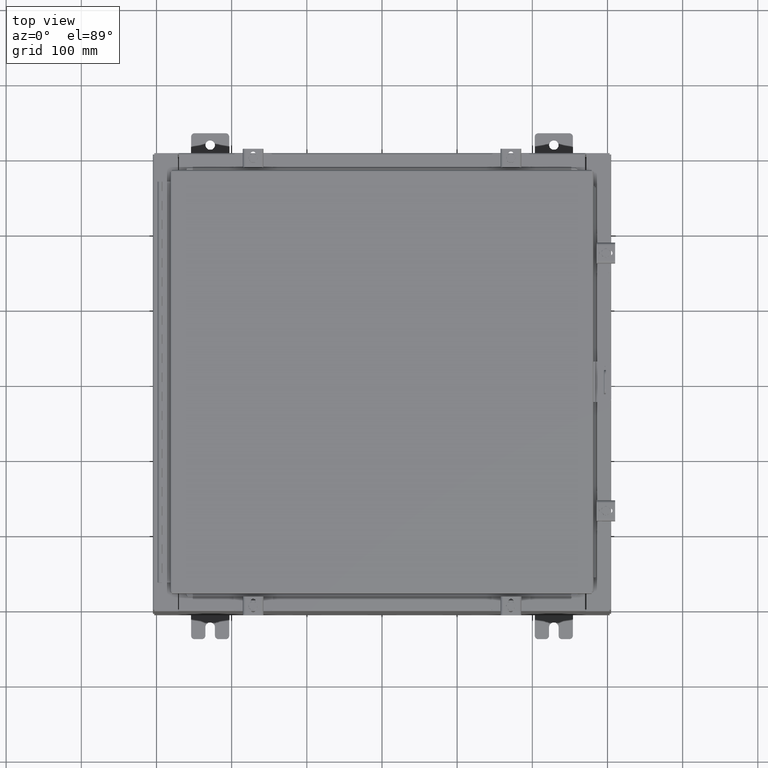
[diagram: clean part render]
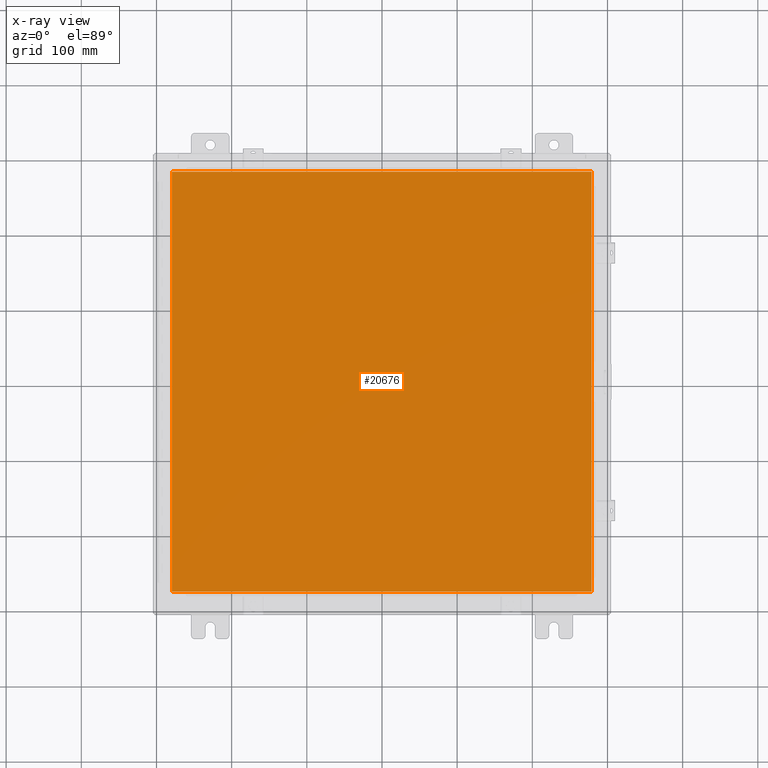
[diagram: x-ray — body ghosted, one internal face saturated and labeled with its STEP entity id]
A machine part, top view, then the same camera in x-ray: the body is ghosted and one INTERNAL B-rep face — a face not visible from any outside direction — is saturated and labeled: STEP entity #20676.
In plain terms, the highlighted planar face has unit normal (0, 0, -1).
Its self-contained STEP definition (entity closure, byte-faithful):
#128 = VECTOR ( 'NONE', #31455, 39.37007874015748100 ) ;
#699 = VERTEX_POINT ( 'NONE', #14161 ) ;
#1495 = CARTESIAN_POINT ( 'NONE',  ( 10.99029999999999600, -11.00630000000000100, -0.07470000000000019700 ) ) ;
#3142 = ORIENTED_EDGE ( 'NONE', *, *, #20044, .F. ) ;
#3423 = LINE ( 'NONE', #20355, #10068 ) ;
#3605 = DIRECTION ( 'NONE',  ( -1.000000000000000000, -0.0000000000000000000, -0.0000000000000000000 ) ) ;
#3688 = CARTESIAN_POINT ( 'NONE',  ( 10.99029999999999800, 11.00629999999999600, -0.07470000000000019700 ) ) ;
#4999 = EDGE_CURVE ( 'NONE', #18531, #18370, #3423, .T. ) ;
#5397 = CARTESIAN_POINT ( 'NONE',  ( -10.99030000000000000, -11.00630000000000100, -0.07470000000000000300 ) ) ;
#5484 = CARTESIAN_POINT ( 'NONE',  ( 10.99029999999999600, -11.00630000000000100, -0.07470000000000000300 ) ) ;
#6134 = CARTESIAN_POINT ( 'NONE',  ( 0.0000000000000000000, 0.0000000000000000000, -0.07470000000000000300 ) ) ;
#6567 = LINE ( 'NONE', #3688, #21389 ) ;
#7659 = LINE ( 'NONE', #1495, #128 ) ;
#8608 = DIRECTION ( 'NONE',  ( -1.000000000000000000, 0.0000000000000000000, -0.0000000000000000000 ) ) ;
#10068 = VECTOR ( 'NONE', #15270, 39.37007874015748100 ) ;
#10736 = ORIENTED_EDGE ( 'NONE', *, *, #13996, .F. ) ;
#11060 = LINE ( 'NONE', #23526, #23540 ) ;
#12323 = VERTEX_POINT ( 'NONE', #30730 ) ;
#13506 = ORIENTED_EDGE ( 'NONE', *, *, #23815, .F. ) ;
#13996 = EDGE_CURVE ( 'NONE', #12323, #699, #6567, .T. ) ;
#14161 = CARTESIAN_POINT ( 'NONE',  ( -10.99030000000000100, 11.00629999999999600, -0.07470000000000000300 ) ) ;
#15270 = DIRECTION ( 'NONE',  ( 1.000000000000000000, -0.0000000000000000000, -0.0000000000000000000 ) ) ;
#17690 = ORIENTED_EDGE ( 'NONE', *, *, #4999, .F. ) ;
#18370 = VERTEX_POINT ( 'NONE', #5484 ) ;
#18484 = DIRECTION ( 'NONE',  ( 0.0000000000000000000, -1.000000000000000000, 0.0000000000000000000 ) ) ;
#18531 = VERTEX_POINT ( 'NONE', #5397 ) ;
#20044 = EDGE_CURVE ( 'NONE', #699, #18531, #11060, .T. ) ;
#20355 = CARTESIAN_POINT ( 'NONE',  ( -10.99030000000000000, -11.00630000000000100, -0.07469999999999910000 ) ) ;
#20676 = ADVANCED_FACE ( 'NONE', ( #25402 ), #28460, .T. ) ;
#21389 = VECTOR ( 'NONE', #3605, 39.37007874015748100 ) ;
#23526 = CARTESIAN_POINT ( 'NONE',  ( -10.99030000000000500, 11.00629999999999600, -0.07470000000000133500 ) ) ;
#23540 = VECTOR ( 'NONE', #18484, 39.37007874015748100 ) ;
#23591 = DIRECTION ( 'NONE',  ( 0.0000000000000000000, 0.0000000000000000000, -1.000000000000000000 ) ) ;
#23815 = EDGE_CURVE ( 'NONE', #18370, #12323, #7659, .T. ) ;
#25402 = FACE_OUTER_BOUND ( 'NONE', #32298, .T. ) ;
#28460 = PLANE ( 'NONE',  #29978 ) ;
#29978 = AXIS2_PLACEMENT_3D ( 'NONE', #6134, #23591, #8608 ) ;
#30730 = CARTESIAN_POINT ( 'NONE',  ( 10.99029999999999600, 11.00629999999999600, -0.07470000000000000300 ) ) ;
#31455 = DIRECTION ( 'NONE',  ( 0.0000000000000000000, 1.000000000000000000, 0.0000000000000000000 ) ) ;
#32298 = EDGE_LOOP ( 'NONE', ( #13506, #17690, #3142, #10736 ) ) ;